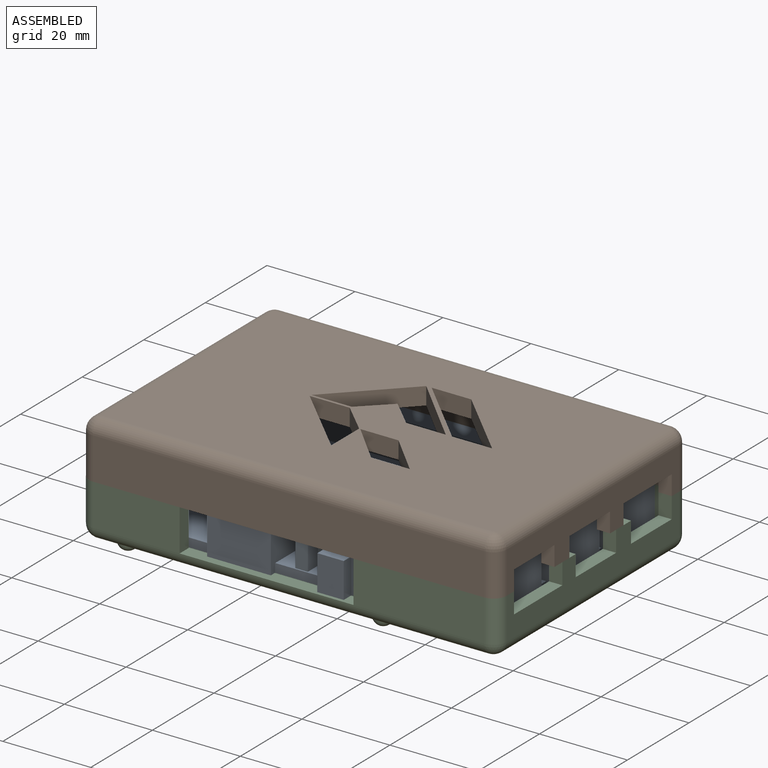
[diagram: assembled view]
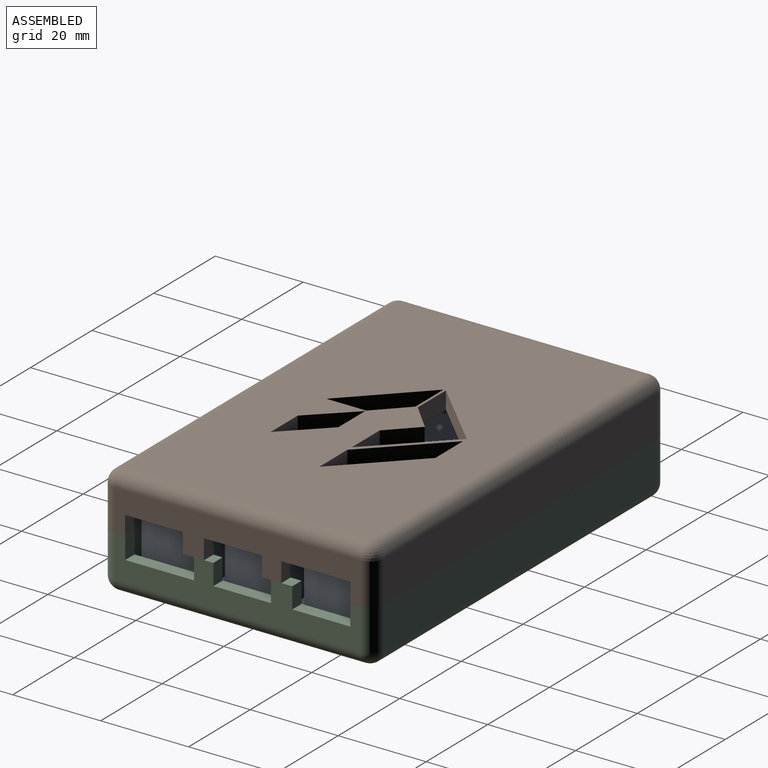
[diagram: assembled view, second angle]
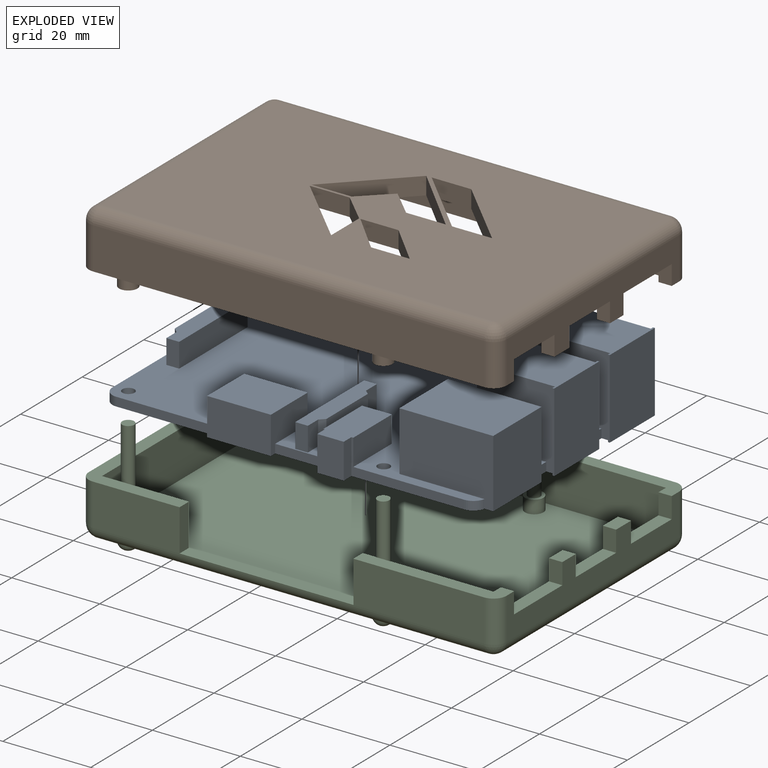
[diagram: exploded view]
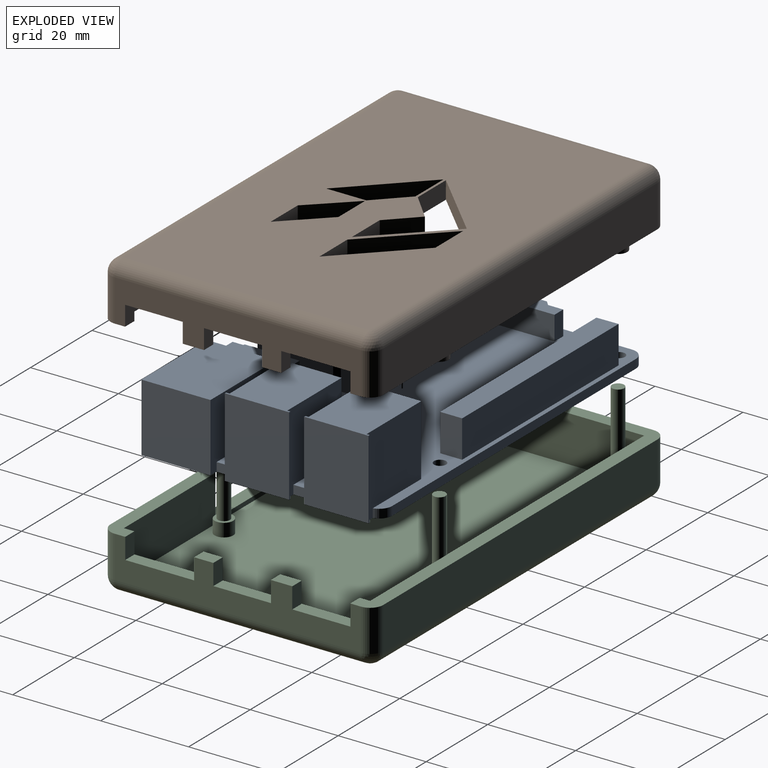
[diagram: exploded view, second angle]
ASSEMBLY  parts=3 mates=4
PART A: 88 faces, bbox 87.4x58.5x18 mm
  f0: plane 85x57.4mm, normal (0,0,1), area 3362.5mm2, adj f1,f4,f5,f21,f22,f23,f24,f27
  f1: plane 4.36x2mm, normal (1,0,0), area 8.7mm2, adj f0,f8,f9,f35,f45
  f2: plane 18x0.71mm, normal (-1,0,0), area 12.8mm2, adj f3,f13,f35,f40,f43,f44
  f3: plane 2x1.98mm, normal (0,1,0), area 4mm2, adj f2,f4,f35,f44
  f4: plane 4.85x2mm, normal (1,0,0), area 9.7mm2, adj f0,f3,f14,f35,f44
  f5: plane 25.64x8mm, normal (0,-1,0), area 53.9mm2, adj f0,f33,f35,f36,f60,f64
  f6: plane 2x1.98mm, normal (0,-1,0), area 4mm2, adj f7,f35,f36,f52
  f7: plane 15.68x15.5mm, normal (1,0,0), area 126.4mm2, adj f6,f8,f35,f52,f53,f54
  f8: plane 2x1.98mm, normal (0,1,0), area 4mm2, adj f1,f7,f35,f50
  f9: plane 18x1.98mm, normal (0,-1,0), area 4mm2, adj f1,f10,f35,f42,f43,f45
  f10: plane 18x0.81mm, normal (-1,0,0), area 14.6mm2, adj f9,f11,f35,f43
  f11: plane 18x0.41mm, normal (0,-1,0), area 7.4mm2, adj f10,f12,f35,f43
  f12: plane 18x14.63mm, normal (1,0,0), area 263.3mm2, adj f11,f13,f35,f43
  f13: plane 18x0.41mm, normal (0,1,0), area 7.4mm2, adj f2,f12,f35,f43
  f14: plane 2x1.98mm, normal (0,-1,0), area 4mm2, adj f4,f15,f35,f48
  f15: plane 18x0.71mm, normal (-1,0,0), area 12.8mm2, adj f14,f16,f35,f48,f49
  f16: plane 18x0.41mm, normal (0,-1,0), area 7.4mm2, adj f15,f17,f35,f49
  f17: plane 18x14.63mm, normal (1,0,0), area 263.3mm2, adj f16,f18,f35,f49
  f18: plane 18x0.41mm, normal (0,1,0), area 7.4mm2, adj f17,f19,f35,f49
  f19: plane 18x0.71mm, normal (-1,0,0), area 12.8mm2, adj f18,f20,f35,f49
  f20: plane 18x1.98mm, normal (0,1,0), area 35.6mm2, adj f19,f35,f37,f46,f49
  f21: plane 79.06x2mm, normal (0,1,0), area 158.1mm2, adj f0,f35,f37,f38
  f22: plane 50x2mm, normal (-1,0,0), area 100mm2, adj f0,f35,f38,f39
  f23: plane 21.61x2mm, normal (0,-1,0), area 43.2mm2, adj f0,f24,f35,f39
  f24: plane 2x1.4mm, normal (-1,0,0), area 2.8mm2, adj f0,f23,f25,f35
  f25: plane 14.48x8.5mm, normal (0,-1,0), area 123.1mm2, adj f24,f26,f35,f57,f58
  f26: plane 8.5x1.4mm, normal (1,0,0), area 11.9mm2, adj f25,f27,f35,f55,f58
  f27: plane 11.33x2mm, normal (0,-1,0), area 22.7mm2, adj f0,f26,f28,f35,f63
  f28: plane 2.48x2mm, normal (-1,0,0), area 5mm2, adj f27,f29,f35,f59
  f29: plane 8x6.01mm, normal (0,-1,0), area 48.1mm2, adj f28,f33,f35,f59,f64
  f30: cylinder r=1.38mm len=2.75mm, axis (0,0,-1), area 17.3mm2, adj f0,f35
  f31: cylinder r=1.38mm len=2.75mm, axis (0,0,-1), area 17.3mm2, adj f0,f35
  f32: cylinder r=1.38mm len=2.75mm, axis (0,0,-1), area 17.3mm2, adj f0,f35
  f33: plane 8x2.48mm, normal (1,0,0), area 19.9mm2, adj f5,f29,f35,f64
  f34: cylinder r=1.38mm len=2.75mm, axis (0,0,-1), area 17.3mm2, adj f0,f35
  f35: plane 87.39x58.48mm, normal (0,0,-1), area 4859.2mm2, adj f1,f2,f3,f4,f5,f6,f7,f8
  f36: cylinder r=3mm len=2.94mm, axis (0,0,-1), area 8.2mm2, adj f0,f5,f6,f35
  f37: cylinder r=3mm len=2.94mm, axis (0,0,1), area 8.2mm2, adj f0,f20,f21,f35
  f38: cylinder r=3mm len=3mm, axis (0,0,1), area 9.4mm2, adj f0,f21,f22,f35
  f39: cylinder r=3mm len=3mm, axis (0,0,-1), area 9.4mm2, adj f0,f22,f23,f35
  f40: plane 17.65x16mm, normal (0,1,0), area 282.4mm2, adj f0,f2,f41,f43,f44
  f41: plane 16x13.2mm, normal (-1,0,0), area 211.3mm2, adj f0,f40,f42,f43
  f42: plane 17.65x16mm, normal (0.01,-1,0), area 282.4mm2, adj f0,f9,f41,f43,f45
  f43: plane 18.06x14.63mm, normal (0,0,1), area 238.2mm2, adj f2,f9,f10,f11,f12,f13,f40,f41
  f44: plane 1.98x0mm, normal (0,0,-1), area 0mm2, adj f2,f3,f4,f40
  f45: plane 1.98x0.01mm, normal (0,0,-1), area 0mm2, adj f1,f9,f42
  f46: plane 16x15.69mm, normal (0,1,0), area 251.1mm2, adj f0,f20,f47,f49
  f47: plane 16x13.2mm, normal (-1,0,0), area 211.3mm2, adj f0,f46,f48,f49
  f48: plane 17.67x16mm, normal (0,-1,0), area 282.8mm2, adj f0,f14,f15,f47,f49
  f49: plane 18.08x14.63mm, normal (0,0,1), area 239.4mm2, adj f15,f16,f17,f18,f19,f20,f46,f47
  f50: plane 21.3x13.5mm, normal (0,1,0), area 287.5mm2, adj f0,f8,f51,f53,f54
  f51: plane 15.68x13.5mm, normal (-1,0,0), area 211.7mm2, adj f0,f50,f52,f54
  f52: plane 21.3x13.5mm, normal (0,-1,0), area 287.5mm2, adj f0,f6,f7,f51,f54
  f53: plane 13.5x8.64mm, normal (1,0,0), area 116.7mm2, adj f7,f50,f54
  f54: plane 21.3x15.68mm, normal (0,0,1), area 334mm2, adj f7,f50,f51,f52,f53
  f55: plane 10.53x6.5mm, normal (1,0,0), area 68.4mm2, adj f0,f26,f56,f58
  f56: plane 14.39x6.5mm, normal (0,1,0), area 93.6mm2, adj f0,f55,f57,f58
  f57: plane 11.93x6.5mm, normal (-1,0.01,0), area 77.5mm2, adj f0,f25,f56,f58
  f58: plane 14.48x11.93mm, normal (0,0,1), area 172.2mm2, adj f25,f26,f55,f56,f57
  f59: plane 6x2.48mm, normal (-1,0,0), area 14.9mm2, adj f28,f29,f63,f64
  f60: plane 12.51x6mm, normal (1,0,0), area 75.1mm2, adj f0,f5,f61,f64
  f61: plane 6.79x6mm, normal (0,1,0), area 40.7mm2, adj f0,f60,f62,f64
  f62: plane 12.51x6mm, normal (-1,0,0), area 75.1mm2, adj f0,f61,f63,f64
  f63: plane 6x0.35mm, normal (0,-1,0), area 2.1mm2, adj f27,f59,f62,f64
  f64: plane 15x6.79mm, normal (0,0,1), area 99.8mm2, adj f5,f29,f33,f59,f60,f61,f62,f63
  f65: plane 5.5x2.86mm, normal (0,1,0), area 15.7mm2, adj f0,f66,f72,f73
  f66: plane 22.36x5.5mm, normal (-1,0,0), area 123mm2, adj f0,f65,f67,f73
  f67: plane 5.5x2.87mm, normal (0,-1,0), area 15.8mm2, adj f0,f66,f68,f73
  f68: plane 5.5x3.35mm, normal (1,0,0), area 18.4mm2, adj f0,f67,f69,f73
  f69: plane 5.5x1.1mm, normal (0.71,-0.71,0), area 8.6mm2, adj f0,f68,f70,f73
  f70: plane 13.46x5.5mm, normal (1,0,0), area 74mm2, adj f0,f69,f71,f73
  f71: plane 5.5x1.11mm, normal (0.67,0.75,0), area 8.2mm2, adj f0,f70,f72,f73
  f72: plane 5.5x3.46mm, normal (1,0,0), area 19.1mm2, adj f0,f65,f71,f73
  f73: plane 22.36x3.97mm, normal (0,0,1), area 80.1mm2, adj f65,f66,f67,f68,f69,f70,f71,f72
  f74: plane 22.3x5.5mm, normal (1,0,0), area 122.6mm2, adj f0,f75,f81,f82
  f75: plane 5.5x2.84mm, normal (0,1,0), area 15.6mm2, adj f0,f74,f76,f82
  f76: plane 5.5x3.43mm, normal (-1,0,0), area 18.9mm2, adj f0,f75,f77,f82
  f77: plane 5.5x1.16mm, normal (-0.69,0.72,0), area 8.8mm2, adj f0,f76,f78,f82
  f78: plane 13.37x5.5mm, normal (-1,0,0), area 73.6mm2, adj f0,f77,f79,f82
  f79: plane 5.5x1.15mm, normal (-0.7,-0.72,0), area 8.8mm2, adj f0,f78,f80,f82
  f80: plane 5.5x3.27mm, normal (-1,0,0), area 18mm2, adj f0,f79,f81,f82
  f81: plane 5.5x2.91mm, normal (0,-1,0), area 16mm2, adj f0,f74,f80,f82
  f82: plane 22.3x4.05mm, normal (0,0,1), area 80.7mm2, adj f74,f75,f76,f77,f78,f79,f80,f81
  f83: plane 50.79x8.5mm, normal (0,1,0), area 431.7mm2, adj f0,f84,f86,f87
  f84: plane 8.5x4.97mm, normal (-1,-0.02,0), area 42.3mm2, adj f0,f83,f85,f87
  f85: plane 50.7x8.5mm, normal (0,-1,0), area 431mm2, adj f0,f84,f86,f87
  f86: plane 8.5x4.97mm, normal (1,0,0), area 42.2mm2, adj f0,f83,f85,f87
  f87: plane 50.79x4.97mm, normal (0,0,1), area 252.2mm2, adj f83,f84,f85,f86
PART B: 68 faces, bbox 95x62x17 mm
  f0: plane 56x8.5mm, normal (-1,0,0), area 287mm2, adj f2,f3,f8,f9,f10,f15,f59,f60
  f1: plane 56x9.5mm, normal (1,0,0), area 343mm2, adj f2,f3,f15,f43,f45,f46,f59,f60
  f2: plane 95x62mm, normal (0,0,-1), area 744.7mm2, adj f0,f1,f9,f10,f11,f12,f13,f14
  f3: plane 4.36x3mm, normal (0,0,-1), area 13.1mm2, adj f0,f1,f63,f67
  f4: cylinder r=1.38mm len=16.9mm, axis (0,0,1), area 146mm2, adj f39,f42
  f5: cylinder r=1.38mm len=16.9mm, axis (0,0,1), area 146mm2, adj f37,f41
  f6: cylinder r=1.38mm len=16.9mm, axis (0,0,1), area 146mm2, adj f35,f40
  f7: plane 89x56mm, normal (0,0,1), area 4464.1mm2, adj f16,f17,f18,f19,f20,f21,f22,f23
  f8: plane 89x56mm, normal (0,0,-1), area 4408.7mm2, adj f0,f9,f10,f14,f16,f17,f18,f19
  f9: plane 89x8.5mm, normal (0,-1,0), area 756.5mm2, adj f0,f2,f8,f14
  f10: plane 89x8.5mm, normal (0,1,0), area 756.5mm2, adj f0,f2,f8,f14
  f11: plane 89x9.5mm, normal (0,1,0), area 845.5mm2, adj f2,f45,f51,f54
  f12: plane 56x9.5mm, normal (-1,0,0), area 532mm2, adj f2,f48,f52,f54
  f13: plane 89x9.5mm, normal (0,-1,0), area 845.5mm2, adj f2,f43,f47,f48
  f14: plane 56x8.5mm, normal (1,0,0), area 476mm2, adj f2,f8,f9,f10
  f15: plane 4.85x3mm, normal (0,0,-1), area 14.5mm2, adj f0,f1,f60,f64
  f16: plane 9.09x4mm, normal (0,1,0), area 36.4mm2, adj f7,f8,f17,f19
  f17: plane 15.55x15.44mm, normal (-0.7,-0.71,0), area 87.7mm2, adj f7,f8,f16,f18
  f18: plane 9x4mm, normal (0,-1,0), area 36mm2, adj f7,f8,f17,f19
  f19: plane 15.48x15.46mm, normal (0.71,0.71,0), area 87.5mm2, adj f7,f8,f16,f18
  f20: plane 15.8x15.57mm, normal (0.7,0.71,0), area 88.7mm2, adj f7,f8,f21,f23
  f21: plane 9.09x4mm, normal (-1,0,0), area 36.4mm2, adj f7,f8,f20,f22
  f22: plane 6.67x6.48mm, normal (-0.7,-0.72,0), area 37.2mm2, adj f7,f8,f21,f23
  f23: plane 9.13x4mm, normal (0,-1,0), area 36.5mm2, adj f7,f8,f20,f22
  f24: plane 8.67x4mm, normal (0,-1,0), area 34.7mm2, adj f7,f8,f25,f27
  f25: plane 9.13x8.82mm, normal (0.72,0.69,0), area 50.8mm2, adj f7,f8,f24,f26
  f26: plane 8.8x4mm, normal (0,1,0), area 35.2mm2, adj f7,f8,f25,f27
  f27: plane 9.13x8.96mm, normal (-0.71,-0.7,0), area 51.2mm2, adj f7,f8,f24,f26
  f28: plane 9.02x4mm, normal (0,1,0), area 36.1mm2, adj f7,f8,f29,f33
  f29: plane 15.44x15.24mm, normal (-0.71,-0.7,0), area 86.8mm2, adj f7,f8,f28,f30
  f30: plane 15.44x15.28mm, normal (0.71,-0.7,0), area 86.9mm2, adj f7,f8,f29,f31
  f31: plane 9.13x4mm, normal (0,1,0), area 36.5mm2, adj f7,f8,f30,f32
  f32: plane 6.24x5.98mm, normal (-0.69,0.72,0), area 34.6mm2, adj f7,f8,f31,f33
  f33: plane 6.13x5.98mm, normal (0.7,0.72,0), area 34.3mm2, adj f7,f8,f28,f32
  f34: cylinder r=2.1mm len=13mm, axis (0,0,1), area 171.5mm2, adj f8,f35
  f35: plane 4.2x4.2mm, normal (0,0,-1), area 7.9mm2, adj f6,f34
  f36: cylinder r=2.1mm len=13mm, axis (0,0,1), area 171.5mm2, adj f8,f37
  f37: plane 4.2x4.2mm, normal (0,0,-1), area 7.9mm2, adj f5,f36
  f38: cylinder r=2.1mm len=13mm, axis (0,0,1), area 171.5mm2, adj f8,f39
  f39: plane 4.2x4.2mm, normal (0,0,-1), area 7.9mm2, adj f4,f38
  f40: plane 2.75x2.75mm, normal (0,0,-1), area 5.9mm2, adj f6
  f41: plane 2.75x2.75mm, normal (0,0,-1), area 5.9mm2, adj f5
  f42: plane 2.75x2.75mm, normal (0,0,-1), area 5.9mm2, adj f4
  f43: cylinder r=3mm len=9.5mm, axis (0,0,-1), area 44.8mm2, adj f1,f2,f13,f44
  f44: sphere r=3mm, area 14.1mm2, adj f43,f46,f47
  f45: cylinder r=3mm len=9.5mm, axis (0,0,1), area 44.8mm2, adj f1,f2,f11,f49
  f46: cylinder r=3mm len=56mm, axis (0,1,0), area 263.9mm2, adj f1,f7,f44,f49
  f47: cylinder r=3mm len=89mm, axis (1,0,0), area 419.4mm2, adj f7,f13,f44,f50
  f48: cylinder r=3mm len=9.5mm, axis (0,0,-1), area 44.8mm2, adj f2,f12,f13,f50
  f49: sphere r=3mm, area 14.1mm2, adj f45,f46,f51
  f50: sphere r=3mm, area 14.1mm2, adj f47,f48,f52
  f51: cylinder r=3mm len=89mm, axis (-1,0,0), area 419.4mm2, adj f7,f11,f49,f53
  f52: cylinder r=3mm len=56mm, axis (0,-1,0), area 263.9mm2, adj f7,f12,f50,f53
  f53: sphere r=3mm, area 14.1mm2, adj f51,f52,f54
  f54: cylinder r=3mm len=9.5mm, axis (0,0,1), area 44.8mm2, adj f2,f11,f12,f53
  f55: cylinder r=2.1mm len=13mm, axis (0,0,1), area 171.5mm2, adj f8,f56
  f56: plane 4.2x4.2mm, normal (0,0,-1), area 7.9mm2, adj f55,f57
  f57: cylinder r=1.38mm len=16.9mm, axis (0,0,-1), area 146mm2, adj f56,f58
  f58: plane 2.75x2.75mm, normal (0,0,-1), area 5.9mm2, adj f57
  f59: plane 13.1x3mm, normal (0,0,-1), area 39.3mm2, adj f0,f1,f60,f61
  f60: plane 4.5x3mm, normal (0,-1,0), area 13.5mm2, adj f0,f1,f15,f59
  f61: plane 4.5x3mm, normal (0,1,0), area 13.5mm2, adj f0,f1,f2,f59
  f62: plane 13.2x3mm, normal (0,0,-1), area 39.6mm2, adj f0,f1,f63,f64
  f63: plane 4.5x3mm, normal (0,-1,0), area 13.5mm2, adj f0,f1,f3,f62
  f64: plane 4.5x3mm, normal (0,1,0), area 13.5mm2, adj f0,f1,f15,f62
  f65: plane 15.68x3mm, normal (0,0,-1), area 47.1mm2, adj f0,f1,f66,f67
  f66: plane 4.5x3mm, normal (0,-1,0), area 13.5mm2, adj f0,f1,f2,f65
  f67: plane 4.5x3mm, normal (0,1,0), area 13.5mm2, adj f0,f1,f3,f65
PART C: 67 faces, bbox 95x62x26 mm
  f0: plane 29.73x9.5mm, normal (0,-1,0), area 282.4mm2, adj f1,f31,f34,f65
  f1: plane 32.73x5.41mm, normal (0,0,1), area 103.5mm2, adj f0,f2,f3,f9,f31,f51,f65
  f2: plane 89x10.5mm, normal (0,1,0), area 558.9mm2, adj f1,f6,f7,f9,f13,f64,f65,f66
  f3: plane 56x9.5mm, normal (1,0,0), area 332.4mm2, adj f1,f4,f5,f6,f31,f35,f36,f43
  f4: plane 4.36x3mm, normal (0,0,1), area 13.1mm2, adj f3,f9,f48,f50
  f5: plane 4.85x3mm, normal (0,0,1), area 14.5mm2, adj f3,f9,f45,f47
  f6: plane 95x62mm, normal (0,0,1), area 522.6mm2, adj f2,f3,f9,f10,f11,f12,f13,f14
  f7: plane 89x56mm, normal (0,0,1), area 4928.6mm2, adj f2,f9,f13,f14,f15,f17,f19,f21
  f8: plane 89x56mm, normal (0,0,-1), area 4928.1mm2, adj f34,f35,f39,f40,f52,f54,f58,f60
  f9: plane 56x10.5mm, normal (-1,0,0), area 388.4mm2, adj f1,f2,f4,f5,f6,f7,f14,f43
  f10: plane 56x9.5mm, normal (-1,0,0), area 532mm2, adj f6,f33,f39,f42
  f11: plane 19.73x9.5mm, normal (0,-1,0), area 187.5mm2, adj f6,f33,f34,f66
  f12: plane 89x9.5mm, normal (0,1,0), area 845.5mm2, adj f6,f36,f40,f42
  f13: plane 56x10.5mm, normal (1,0,0), area 588mm2, adj f2,f6,f7,f14
  f14: plane 89x10.5mm, normal (0,-1,0), area 934.5mm2, adj f6,f7,f9,f13
  f15: cylinder r=2.1mm len=4.2mm, axis (0,0,-1), area 39.6mm2, adj f7,f16
  f16: plane 4.2x4.2mm, normal (0,0,1), area 7.9mm2, adj f15,f24
  f17: cylinder r=2.1mm len=4.2mm, axis (0,0,-1), area 39.6mm2, adj f7,f18
  f18: plane 4.2x4.2mm, normal (0,0,1), area 7.9mm2, adj f17,f26
  f19: cylinder r=2.1mm len=4.2mm, axis (0,0,-1), area 39.6mm2, adj f7,f20
  f20: plane 4.2x4.2mm, normal (0,0,1), area 7.9mm2, adj f19,f28
  f21: cylinder r=2.1mm len=4.2mm, axis (0,0,-1), area 39.6mm2, adj f7,f22
  f22: plane 4.2x4.2mm, normal (0,0,1), area 7.9mm2, adj f21,f30
  f23: plane 2.75x2.75mm, normal (0,0,1), area 5.9mm2, adj f24
  f24: cylinder r=1.38mm len=18mm, axis (0,0,-1), area 155.5mm2, adj f16,f23
  f25: plane 2.75x2.75mm, normal (0,0,1), area 5.9mm2, adj f26
  f26: cylinder r=1.38mm len=18mm, axis (0,0,-1), area 155.5mm2, adj f18,f25
  f27: plane 2.75x2.75mm, normal (0,0,1), area 5.9mm2, adj f28
  f28: cylinder r=1.38mm len=18mm, axis (0,0,-1), area 155.5mm2, adj f20,f27
  f29: plane 2.75x2.75mm, normal (0,0,1), area 5.9mm2, adj f30
  f30: cylinder r=1.38mm len=18mm, axis (0,0,-1), area 155.5mm2, adj f22,f29
  f31: cylinder r=3mm len=9.5mm, axis (0,0,1), area 44.8mm2, adj f0,f1,f3,f32
  f32: sphere r=3mm, area 14.1mm2, adj f31,f34,f35
  f33: cylinder r=3mm len=9.5mm, axis (0,0,-1), area 44.8mm2, adj f6,f10,f11,f37
  f34: cylinder r=3mm len=89mm, axis (1,0,0), area 419.4mm2, adj f0,f8,f11,f32,f37,f64
  f35: cylinder r=3mm len=56mm, axis (0,1,0), area 263.9mm2, adj f3,f8,f32,f38
  f36: cylinder r=3mm len=9.5mm, axis (0,0,1), area 44.8mm2, adj f3,f6,f12,f38
  f37: sphere r=3mm, area 14.1mm2, adj f33,f34,f39
  f38: sphere r=3mm, area 14.1mm2, adj f35,f36,f40
  f39: cylinder r=3mm len=56mm, axis (0,-1,0), area 263.9mm2, adj f8,f10,f37,f41
  f40: cylinder r=3mm len=89mm, axis (-1,0,0), area 419.4mm2, adj f8,f12,f38,f41
  f41: sphere r=3mm, area 14.1mm2, adj f39,f40,f42
  f42: cylinder r=3mm len=9.5mm, axis (0,0,-1), area 44.8mm2, adj f6,f10,f12,f41
  f43: plane 13.2x3mm, normal (0,0,1), area 39.6mm2, adj f3,f9,f44,f45
  f44: plane 4.75x3mm, normal (0,-1,0), area 14.3mm2, adj f3,f6,f9,f43
  f45: plane 4.75x3mm, normal (0,1,0), area 14.3mm2, adj f3,f5,f9,f43
  f46: plane 13.1x3mm, normal (0,0,1), area 39.3mm2, adj f3,f9,f47,f48
  f47: plane 4.75x3mm, normal (0,-1,0), area 14.3mm2, adj f3,f5,f9,f46
  f48: plane 4.75x3mm, normal (0,1,0), area 14.3mm2, adj f3,f4,f9,f46
  f49: plane 15.68x3mm, normal (0,0,1), area 47.1mm2, adj f3,f9,f50,f51
  f50: plane 4.75x3mm, normal (0,-1,0), area 14.3mm2, adj f3,f4,f9,f49
  f51: plane 4.75x3mm, normal (0,1,0), area 14.3mm2, adj f1,f3,f9,f49
  f52: cylinder r=2.12mm len=4.25mm, axis (0,0,1), area 13.4mm2, adj f8,f56
  f53: plane 0.25x0.25mm, normal (0,0,-1), area 0mm2, adj f56
  f54: cylinder r=2.09mm len=4.18mm, axis (0,0,1), area 13.1mm2, adj f8,f57
  f55: plane 0.18x0.18mm, normal (0,0,-1), area 0mm2, adj f57
  f56: torus R=0.12mm, axis (0,0,1), area 27.6mm2, adj f52,f53
  f57: torus R=0.09mm, axis (0,0,1), area 26.9mm2, adj f54,f55
  f58: cylinder r=2.1mm len=4.2mm, axis (0,0,1), area 13.2mm2, adj f8,f63
  f59: plane 0.2x0.2mm, normal (0,0,-1), area 0mm2, adj f63
  f60: cylinder r=2.12mm len=4.25mm, axis (0,0,1), area 13.4mm2, adj f8,f62
  f61: plane 0.25x0.25mm, normal (0,0,-1), area 0mm2, adj f62
  f62: torus R=0.12mm, axis (0,0,1), area 27.6mm2, adj f60,f61
  f63: torus R=0.1mm, axis (0,0,1), area 27.1mm2, adj f58,f59
  f64: plane 39.54x3mm, normal (0,0,1), area 118.6mm2, adj f2,f34,f65,f66
  f65: plane 9.5x3mm, normal (-1,0,0), area 28.5mm2, adj f0,f1,f2,f64
  f66: plane 9.5x3mm, normal (1,0,0), area 28.5mm2, adj f2,f6,f11,f64
PLACE A t=(110.85,-70.08,-13.52)mm
PLACE B t=(33.81,-15.93,8.48)mm
PLACE C t=(33.79,-15.93,-16.52)mm
MATE parallel B.f6 <-> C.f15  axis (0,0,-1) through (-7.19,8.57,-8.52)mm
MATE parallel A.f31 <-> C.f15  axis (0,0,1) through (-7.21,8.77,-11.52)mm
MATE parallel C.f15 <-> A.f31  axis (0,0,-1) through (-7.21,8.57,-11.52)mm
MATE parallel B.f6 <-> C.f15  axis (0,0,-1) through (-7.19,8.57,-8.52)mm
